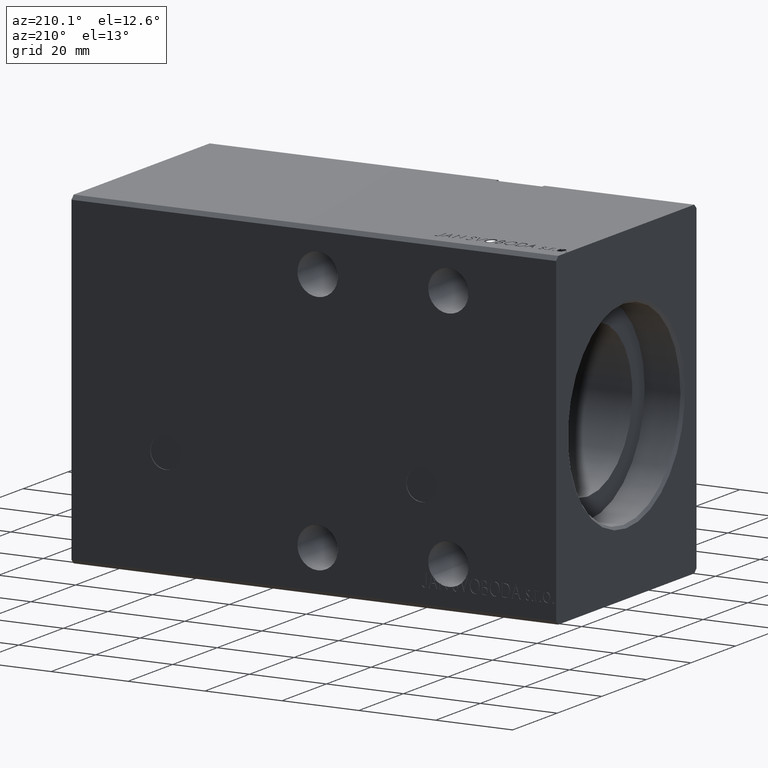
[diagram: clean part render]
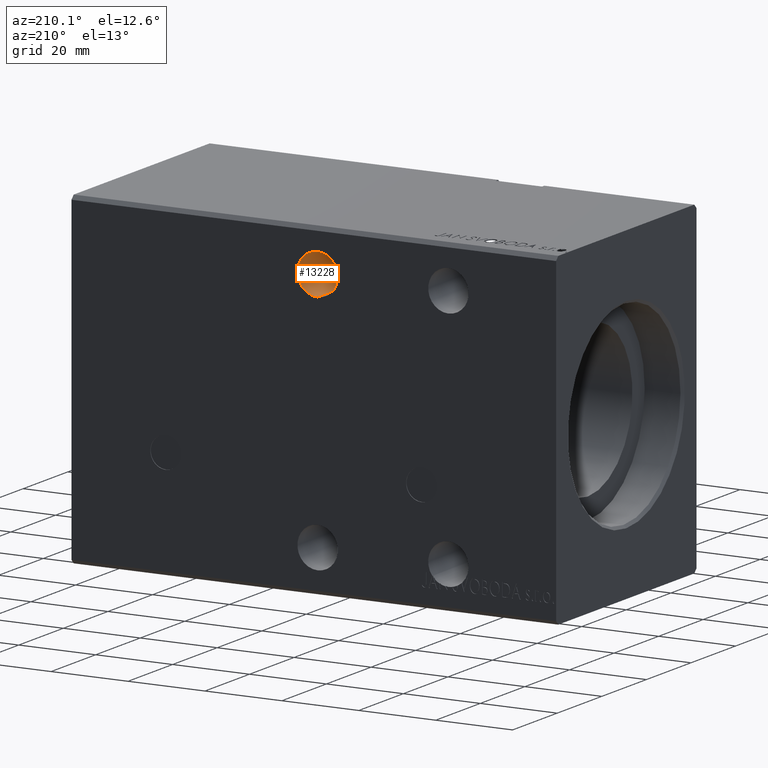
[diagram: same view with one face highlighted and labeled with its STEP entity id]
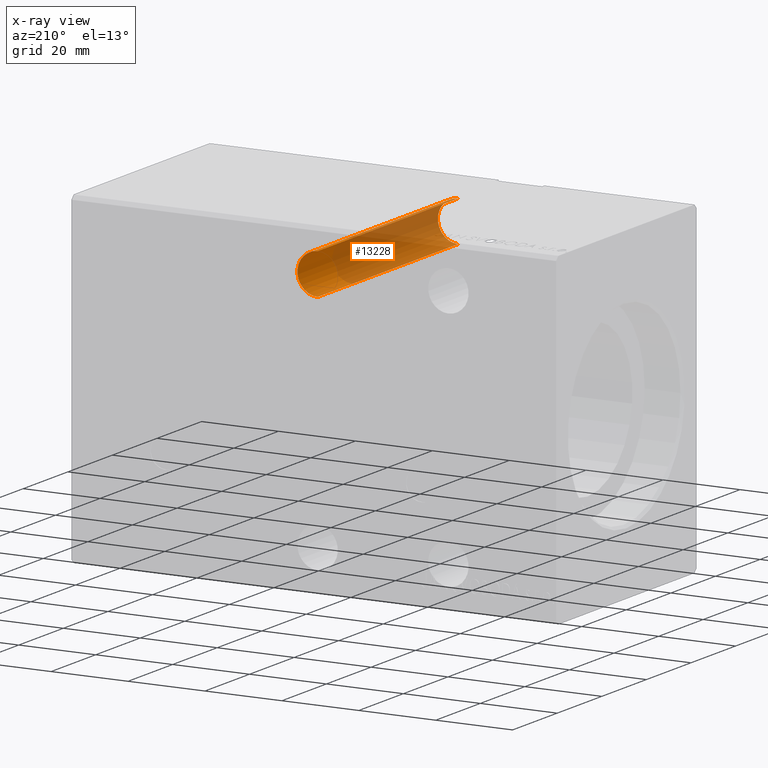
[diagram: x-ray of the same camera — body ghosted, the highlighted face saturated]
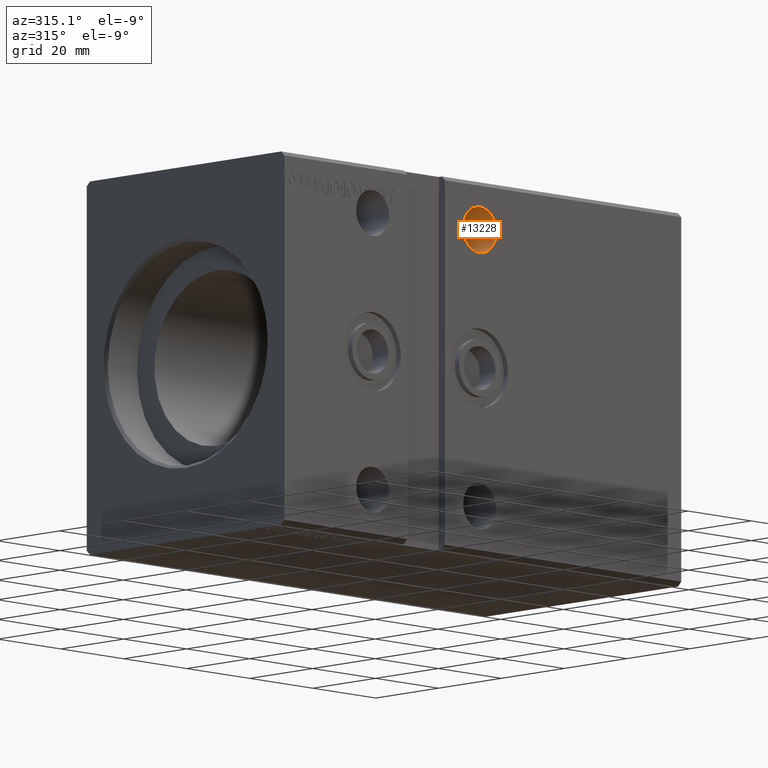
[diagram: same view with one face highlighted and labeled with its STEP entity id]
A machine part, auxiliary view. The second image highlights one B-rep face of the part: STEP entity #13228.
The next image is the same camera in x-ray: the body ghosted, the highlighted face saturated — about 75% of this face is hidden behind the body in this view.
A second angle (auxiliary view) of the same face is appended — the face is thin or edge-on in the first view.
In plain terms, the highlighted cylindrical surface (edge-blend (fillet) strip) has radius 5.25 mm, axis along (-0, -1, -0).
Its self-contained STEP definition (entity closure, byte-faithful):
#79 = ORIENTED_EDGE ( 'NONE', *, *, #24487, .T. ) ;
#87 = DIRECTION ( 'NONE',  ( -0.000000000000000000, -1.000000000000000000, -5.507058653894625853E-17 ) ) ;
#775 = DIRECTION ( 'NONE',  ( 0.000000000000000000, 0.000000000000000000, 1.000000000000000000 ) ) ;
#1116 = VECTOR ( 'NONE', #24041, 1000.000000000000000 ) ;
#1695 = DIRECTION ( 'NONE',  ( -0.000000000000000000, -1.000000000000000000, -5.507058653894625853E-17 ) ) ;
#1936 = CARTESIAN_POINT ( 'NONE',  ( 62.00000000000000000, -31.50000000000000000, 26.24999999999999645 ) ) ;
#2104 = ORIENTED_EDGE ( 'NONE', *, *, #35972, .F. ) ;
#5940 = FACE_OUTER_BOUND ( 'NONE', #18371, .T. ) ;
#6230 = CARTESIAN_POINT ( 'NONE',  ( 62.00000000000000000, 31.50000000000002842, 26.25000000000000355 ) ) ;
#6431 = CARTESIAN_POINT ( 'NONE',  ( 62.00000000000000000, 31.50000000000002842, 26.25000000000000355 ) ) ;
#7270 = DIRECTION ( 'NONE',  ( -0.000000000000000000, 1.000000000000000000, 5.507058653894625853E-17 ) ) ;
#9281 = VECTOR ( 'NONE', #87, 1000.000000000000000 ) ;
#10155 = CARTESIAN_POINT ( 'NONE',  ( 62.00000000000000000, 31.50000000000002842, 31.50000000000000711 ) ) ;
#10705 = VERTEX_POINT ( 'NONE', #6230 ) ;
#11302 = ORIENTED_EDGE ( 'NONE', *, *, #12634, .T. ) ;
#12627 = LINE ( 'NONE', #15696, #9281 ) ;
#12634 = EDGE_CURVE ( 'NONE', #22415, #14210, #29556, .T. ) ;
#13228 = ADVANCED_FACE ( 'NONE', ( #5940 ), #31039, .F. ) ;
#13468 = ORIENTED_EDGE ( 'NONE', *, *, #21839, .T. ) ;
#14210 = VERTEX_POINT ( 'NONE', #24355 ) ;
#15605 = CIRCLE ( 'NONE', #37294, 5.250000000000004441 ) ;
#15679 = AXIS2_PLACEMENT_3D ( 'NONE', #20197, #1695, #39118 ) ;
#15696 = CARTESIAN_POINT ( 'NONE',  ( 62.00000000000000000, 31.50000000000002842, 36.75000000000001421 ) ) ;
#18371 = EDGE_LOOP ( 'NONE', ( #2104, #79, #13468, #11302 ) ) ;
#18373 = CARTESIAN_POINT ( 'NONE',  ( 62.00000000000000000, 31.50000000000002842, 36.75000000000001421 ) ) ;
#20197 = CARTESIAN_POINT ( 'NONE',  ( 62.00000000000000000, 31.50000000000002842, 31.50000000000000711 ) ) ;
#21705 = AXIS2_PLACEMENT_3D ( 'NONE', #28742, #25667, #775 ) ;
#21839 = EDGE_CURVE ( 'NONE', #10705, #22415, #34602, .T. ) ;
#22415 = VERTEX_POINT ( 'NONE', #1936 ) ;
#24041 = DIRECTION ( 'NONE',  ( -0.000000000000000000, -1.000000000000000000, -5.507058653894625853E-17 ) ) ;
#24355 = CARTESIAN_POINT ( 'NONE',  ( 62.00000000000000000, -31.50000000000000000, 36.75000000000000711 ) ) ;
#24487 = EDGE_CURVE ( 'NONE', #32789, #10705, #15605, .T. ) ;
#25667 = DIRECTION ( 'NONE',  ( 0.000000000000000000, -1.000000000000000000, -0.000000000000000000 ) ) ;
#28742 = CARTESIAN_POINT ( 'NONE',  ( 62.00000000000000000, -31.50000000000000000, 31.50000000000000000 ) ) ;
#29556 = CIRCLE ( 'NONE', #21705, 5.250000000000004441 ) ;
#31039 = CYLINDRICAL_SURFACE ( 'NONE', #15679, 5.250000000000004441 ) ;
#32789 = VERTEX_POINT ( 'NONE', #18373 ) ;
#34602 = LINE ( 'NONE', #6431, #1116 ) ;
#34618 = DIRECTION ( 'NONE',  ( 0.000000000000000000, 0.000000000000000000, 1.000000000000000000 ) ) ;
#35972 = EDGE_CURVE ( 'NONE', #32789, #14210, #12627, .T. ) ;
#37294 = AXIS2_PLACEMENT_3D ( 'NONE', #10155, #7270, #34618 ) ;
#39118 = DIRECTION ( 'NONE',  ( 0.000000000000000000, 0.000000000000000000, -1.000000000000000000 ) ) ;